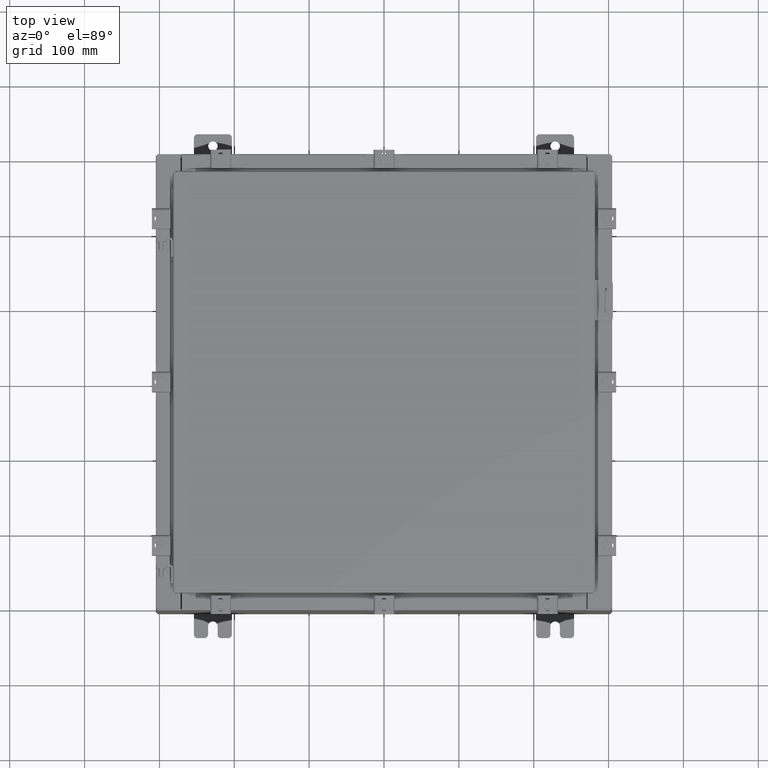
[diagram: clean part render]
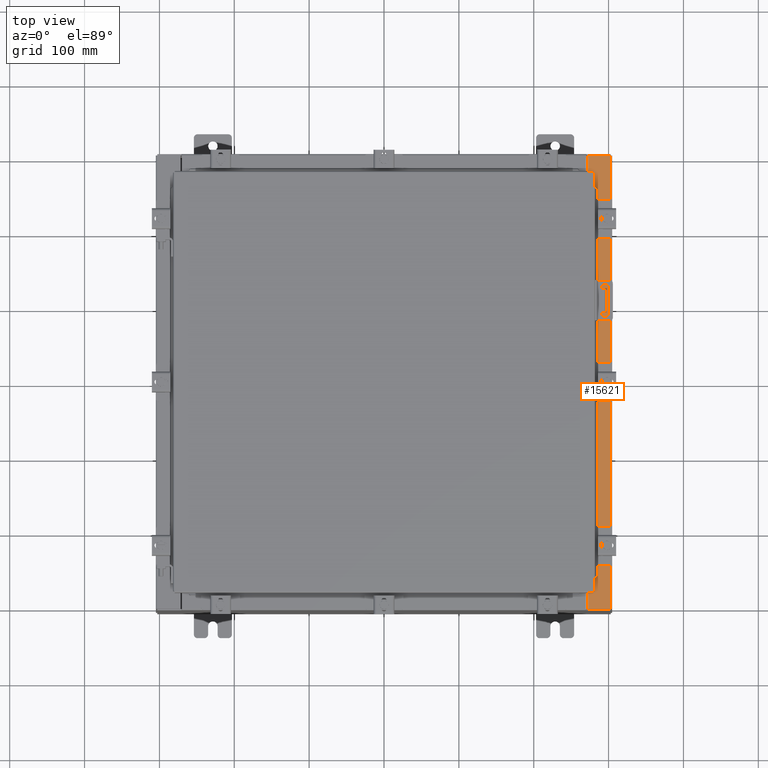
[diagram: same view with one face highlighted and labeled with its STEP entity id]
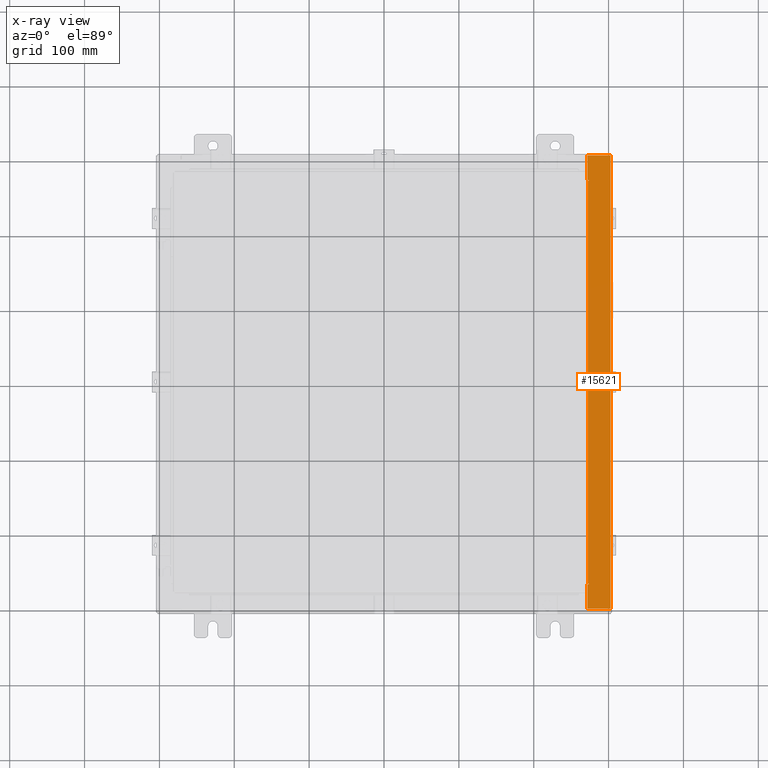
[diagram: x-ray of the same camera — body ghosted, the highlighted face saturated]
A machine part, top view. The second image highlights one B-rep face of the part: STEP entity #15621.
The next image is the same camera in x-ray: the body ghosted, the highlighted face saturated — about 0% of this face is hidden behind the body in this view.
In plain terms, the highlighted planar face has unit normal (-0, 0, -1).
Its self-contained STEP definition (entity closure, byte-faithful):
#67 = ORIENTED_EDGE ( 'NONE', *, *, #16585, .T. ) ;
#118 = ORIENTED_EDGE ( 'NONE', *, *, #22413, .T. ) ;
#138 = CARTESIAN_POINT ( 'NONE',  ( 11.91230000000003900, -11.92530000000000400, 11.92530000000000000 ) ) ;
#250 = AXIS2_PLACEMENT_3D ( 'NONE', #18776, #8367, #20528 ) ;
#301 = CARTESIAN_POINT ( 'NONE',  ( 10.71270000000004300, -10.59375000000000200, 11.92530000000000900 ) ) ;
#684 = ORIENTED_EDGE ( 'NONE', *, *, #4632, .F. ) ;
#716 = ORIENTED_EDGE ( 'NONE', *, *, #11751, .F. ) ;
#1085 = DIRECTION ( 'NONE',  ( 1.000000000000000000, 0.0000000000000000000, 0.0000000000000000000 ) ) ;
#1361 = VECTOR ( 'NONE', #14307, 39.37007874015748100 ) ;
#1570 = VERTEX_POINT ( 'NONE', #10631 ) ;
#2037 = FACE_OUTER_BOUND ( 'NONE', #14341, .T. ) ;
#2370 = CIRCLE ( 'NONE', #13315, 0.01867499999999949400 ) ;
#2406 = LINE ( 'NONE', #17877, #11105 ) ;
#2444 = ORIENTED_EDGE ( 'NONE', *, *, #9333, .F. ) ;
#2736 = PLANE ( 'NONE',  #13552 ) ;
#2836 = LINE ( 'NONE', #5236, #7498 ) ;
#3656 = LINE ( 'NONE', #5850, #21089 ) ;
#3690 = VERTEX_POINT ( 'NONE', #4668 ) ;
#4017 = CARTESIAN_POINT ( 'NONE',  ( 10.69970000000004100, -10.63110000000000200, 11.92530000000000900 ) ) ;
#4055 = EDGE_CURVE ( 'NONE', #11497, #4670, #21585, .T. ) ;
#4377 = CARTESIAN_POINT ( 'NONE',  ( 10.75005000000004300, -10.59375000000000200, 11.92530000000000900 ) ) ;
#4499 = DIRECTION ( 'NONE',  ( -7.132762385546384700E-015, 0.0000000000000000000, -1.000000000000000000 ) ) ;
#4632 = EDGE_CURVE ( 'NONE', #21210, #3690, #7700, .T. ) ;
#4668 = CARTESIAN_POINT ( 'NONE',  ( 10.75005000000004300, -10.63110000000000200, 11.92530000000000900 ) ) ;
#4670 = VERTEX_POINT ( 'NONE', #9898 ) ;
#5070 = DIRECTION ( 'NONE',  ( 7.132762385546384700E-015, 0.0000000000000000000, 1.000000000000000000 ) ) ;
#5236 = CARTESIAN_POINT ( 'NONE',  ( 10.75005000000004300, -10.59375000000000200, 11.92530000000000900 ) ) ;
#5674 = EDGE_CURVE ( 'NONE', #19890, #9508, #11901, .T. ) ;
#5757 = ORIENTED_EDGE ( 'NONE', *, *, #16121, .T. ) ;
#5850 = CARTESIAN_POINT ( 'NONE',  ( 10.69970000000004100, 0.0000000000000000000, 11.92530000000000900 ) ) ;
#5936 = DIRECTION ( 'NONE',  ( -0.0000000000000000000, 1.000000000000000000, -0.0000000000000000000 ) ) ;
#6360 = CARTESIAN_POINT ( 'NONE',  ( 10.69970000000004100, -10.63110000000000200, 11.92530000000000900 ) ) ;
#6771 = VECTOR ( 'NONE', #18778, 39.37007874015748100 ) ;
#7134 = EDGE_CURVE ( 'NONE', #15221, #10596, #13468, .T. ) ;
#7355 = CARTESIAN_POINT ( 'NONE',  ( 10.71270000000004300, 10.59374999999998400, 11.92530000000000900 ) ) ;
#7498 = VECTOR ( 'NONE', #15615, 39.37007874015748100 ) ;
#7700 = LINE ( 'NONE', #6360, #21033 ) ;
#7721 = VECTOR ( 'NONE', #17632, 39.37007874015748100 ) ;
#8367 = DIRECTION ( 'NONE',  ( 7.132762385546384700E-015, 0.0000000000000000000, 1.000000000000000000 ) ) ;
#8725 = EDGE_CURVE ( 'NONE', #1570, #11497, #13952, .T. ) ;
#9147 = EDGE_CURVE ( 'NONE', #19890, #19190, #20118, .T. ) ;
#9333 = EDGE_CURVE ( 'NONE', #3690, #21953, #2370, .T. ) ;
#9373 = DIRECTION ( 'NONE',  ( -1.000000000000000000, 0.0000000000000000000, 7.132762385546384700E-015 ) ) ;
#9508 = VERTEX_POINT ( 'NONE', #138 ) ;
#9662 = ORIENTED_EDGE ( 'NONE', *, *, #8725, .F. ) ;
#9898 = CARTESIAN_POINT ( 'NONE',  ( 10.69970000000004100, 10.63109999999998600, 11.92530000000000900 ) ) ;
#10284 = ORIENTED_EDGE ( 'NONE', *, *, #4055, .F. ) ;
#10596 = VERTEX_POINT ( 'NONE', #14563 ) ;
#10631 = CARTESIAN_POINT ( 'NONE',  ( 10.75005000000004300, 10.59374999999998400, 11.92530000000000900 ) ) ;
#10836 = CARTESIAN_POINT ( 'NONE',  ( 10.69970000000004100, 0.0000000000000000000, 11.92530000000000900 ) ) ;
#10982 = ORIENTED_EDGE ( 'NONE', *, *, #5674, .F. ) ;
#10984 = DIRECTION ( 'NONE',  ( 0.0000000000000000000, -1.000000000000000000, 0.0000000000000000000 ) ) ;
#11105 = VECTOR ( 'NONE', #19648, 39.37007874015748100 ) ;
#11497 = VERTEX_POINT ( 'NONE', #19998 ) ;
#11751 = EDGE_CURVE ( 'NONE', #21953, #15221, #2836, .T. ) ;
#11901 = LINE ( 'NONE', #17012, #6771 ) ;
#12539 = VERTEX_POINT ( 'NONE', #16084 ) ;
#12553 = DIRECTION ( 'NONE',  ( 0.0000000000000000000, -1.000000000000000000, 0.0000000000000000000 ) ) ;
#12852 = CARTESIAN_POINT ( 'NONE',  ( 8.532114493236847900E-014, 11.92529999999999600, 11.92530000000008500 ) ) ;
#13315 = AXIS2_PLACEMENT_3D ( 'NONE', #15480, #5070, #17211 ) ;
#13468 = LINE ( 'NONE', #19920, #17566 ) ;
#13552 = AXIS2_PLACEMENT_3D ( 'NONE', #14905, #4499, #16645 ) ;
#13952 = CIRCLE ( 'NONE', #250, 0.01867499999999949400 ) ;
#14307 = DIRECTION ( 'NONE',  ( 1.000000000000000000, 0.0000000000000000000, 0.0000000000000000000 ) ) ;
#14341 = EDGE_LOOP ( 'NONE', ( #684, #67, #118, #10982, #16152, #5757, #10284, #9662, #17324, #15975, #716, #2444 ) ) ;
#14563 = CARTESIAN_POINT ( 'NONE',  ( 10.71270000000004300, 10.59374999999998400, 11.92530000000000900 ) ) ;
#14594 = CARTESIAN_POINT ( 'NONE',  ( 10.69970000000004100, 11.92529999999999600, 11.92530000000000900 ) ) ;
#14905 = CARTESIAN_POINT ( 'NONE',  ( 8.532114493236847900E-014, 0.0000000000000000000, 11.92530000000008500 ) ) ;
#15221 = VERTEX_POINT ( 'NONE', #301 ) ;
#15242 = LINE ( 'NONE', #7355, #1361 ) ;
#15480 = CARTESIAN_POINT ( 'NONE',  ( 10.75005000000004300, -10.61242500000000200, 11.92530000000000900 ) ) ;
#15615 = DIRECTION ( 'NONE',  ( -1.000000000000000000, 0.0000000000000000000, 0.0000000000000000000 ) ) ;
#15621 = ADVANCED_FACE ( 'NONE', ( #2037 ), #2736, .F. ) ;
#15975 = ORIENTED_EDGE ( 'NONE', *, *, #7134, .F. ) ;
#16084 = CARTESIAN_POINT ( 'NONE',  ( 10.69970000000004100, -11.92530000000000400, 11.92530000000000900 ) ) ;
#16121 = EDGE_CURVE ( 'NONE', #19190, #4670, #3656, .T. ) ;
#16152 = ORIENTED_EDGE ( 'NONE', *, *, #9147, .T. ) ;
#16585 = EDGE_CURVE ( 'NONE', #21210, #12539, #22467, .T. ) ;
#16645 = DIRECTION ( 'NONE',  ( -1.000000000000000000, 0.0000000000000000000, 7.132762385546384700E-015 ) ) ;
#17012 = CARTESIAN_POINT ( 'NONE',  ( 11.91230000000003900, -11.92530000000000400, 11.92530000000000000 ) ) ;
#17211 = DIRECTION ( 'NONE',  ( 1.000000000000000000, 0.0000000000000000000, 0.0000000000000000000 ) ) ;
#17324 = ORIENTED_EDGE ( 'NONE', *, *, #20413, .F. ) ;
#17566 = VECTOR ( 'NONE', #5936, 39.37007874015748100 ) ;
#17632 = DIRECTION ( 'NONE',  ( -1.000000000000000000, 0.0000000000000000000, 0.0000000000000000000 ) ) ;
#17877 = CARTESIAN_POINT ( 'NONE',  ( 8.532114493236847900E-014, -11.92530000000000400, 11.92530000000008500 ) ) ;
#18776 = CARTESIAN_POINT ( 'NONE',  ( 10.75005000000004300, 10.61242499999998400, 11.92530000000000900 ) ) ;
#18778 = DIRECTION ( 'NONE',  ( -0.0000000000000000000, -1.000000000000000000, -0.0000000000000000000 ) ) ;
#19012 = VECTOR ( 'NONE', #9373, 39.37007874015748100 ) ;
#19190 = VERTEX_POINT ( 'NONE', #14594 ) ;
#19648 = DIRECTION ( 'NONE',  ( 1.000000000000000000, 0.0000000000000000000, -7.132762385546384700E-015 ) ) ;
#19890 = VERTEX_POINT ( 'NONE', #21878 ) ;
#19920 = CARTESIAN_POINT ( 'NONE',  ( 10.71270000000004300, -10.59374999999999800, 11.92530000000000900 ) ) ;
#19998 = CARTESIAN_POINT ( 'NONE',  ( 10.75005000000004300, 10.63109999999998400, 11.92530000000000900 ) ) ;
#20118 = LINE ( 'NONE', #12852, #19012 ) ;
#20413 = EDGE_CURVE ( 'NONE', #10596, #1570, #15242, .T. ) ;
#20528 = DIRECTION ( 'NONE',  ( 1.000000000000000000, 0.0000000000000000000, 0.0000000000000000000 ) ) ;
#21033 = VECTOR ( 'NONE', #1085, 39.37007874015748100 ) ;
#21089 = VECTOR ( 'NONE', #10984, 39.37007874015748100 ) ;
#21142 = CARTESIAN_POINT ( 'NONE',  ( 10.75005000000004300, 10.63109999999998400, 11.92530000000000900 ) ) ;
#21210 = VERTEX_POINT ( 'NONE', #4017 ) ;
#21585 = LINE ( 'NONE', #21142, #7721 ) ;
#21878 = CARTESIAN_POINT ( 'NONE',  ( 11.91230000000003900, 11.92529999999999600, 11.92530000000000000 ) ) ;
#21914 = VECTOR ( 'NONE', #12553, 39.37007874015748100 ) ;
#21953 = VERTEX_POINT ( 'NONE', #4377 ) ;
#22413 = EDGE_CURVE ( 'NONE', #12539, #9508, #2406, .T. ) ;
#22467 = LINE ( 'NONE', #10836, #21914 ) ;